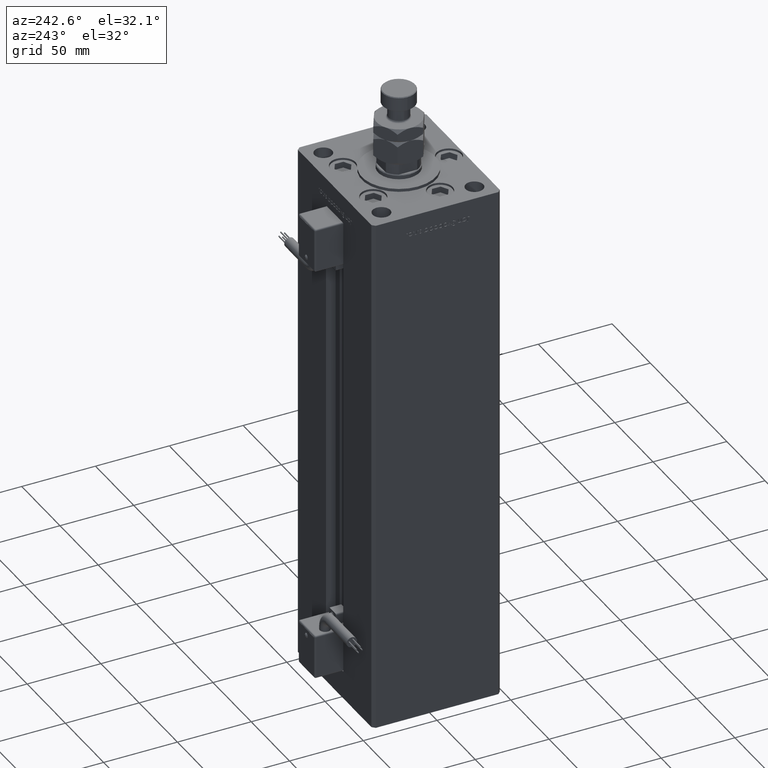
[diagram: clean part render]
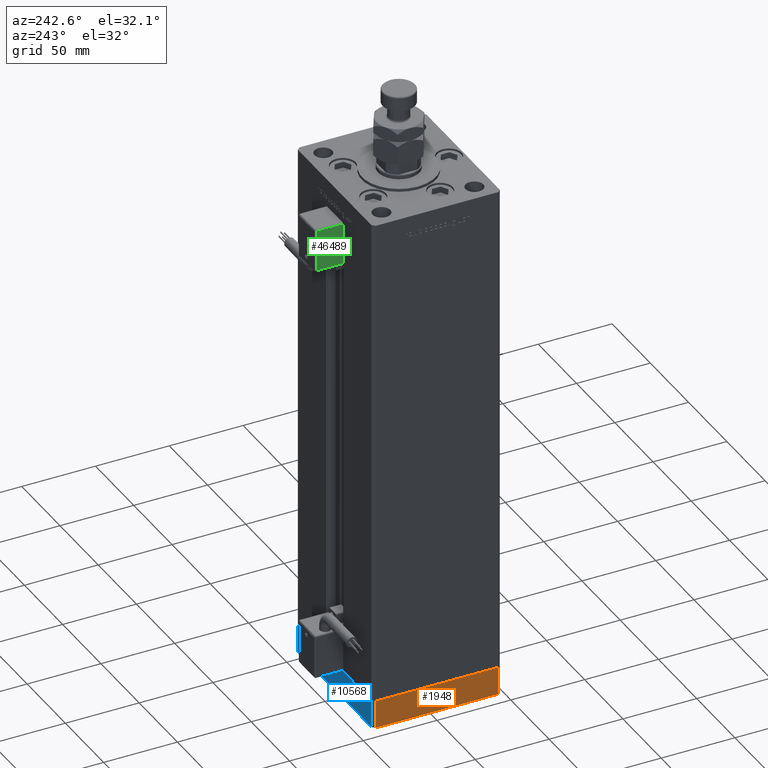
[diagram: same view with three faces highlighted in distinct colors, each labeled with its STEP entity id]
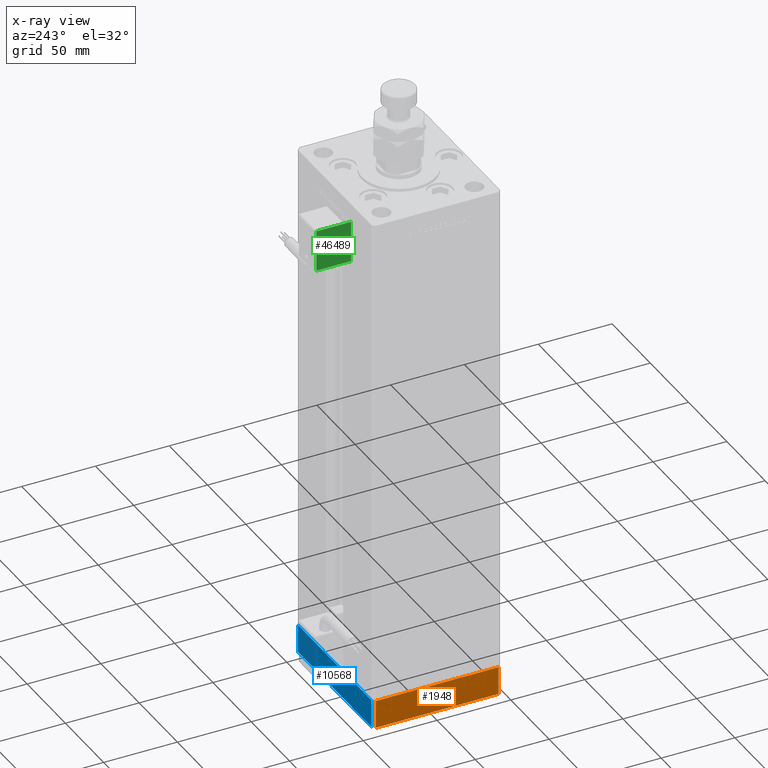
[diagram: x-ray of the same camera — body ghosted, the three highlighted faces saturated]
A machine part, auxiliary view with three faces highlighted in distinct colors.
The next image is the same camera in x-ray (body ghosted, the three faces saturated) — at least one of them is partly hidden behind the body in this view.
Their STEP definitions:

[orange] entity #1948 — the highlighted planar face has unit normal (-1, 0, 0).
#1948 = ADVANCED_FACE ( 'NONE', ( #36136 ), #49080, .T. ) ;
#4372 = AXIS2_PLACEMENT_3D ( 'NONE', #8811, #26359, #31813 ) ;
#6009 = VECTOR ( 'NONE', #54787, 1000.000000000000000 ) ;
#6758 = LINE ( 'NONE', #50203, #6009 ) ;
#8565 = DIRECTION ( 'NONE',  ( 0.000000000000000000, 0.000000000000000000, 1.000000000000000000 ) ) ;
#8811 = CARTESIAN_POINT ( 'NONE',  ( 50.00000000000000000, -41.49999999999999289, -19.00000000000000000 ) ) ;
#11733 = CARTESIAN_POINT ( 'NONE',  ( 50.00000000000000000, -41.49999999999999289, -19.00000000000000000 ) ) ;
#15229 = ORIENTED_EDGE ( 'NONE', *, *, #29860, .T. ) ;
#16362 = EDGE_CURVE ( 'NONE', #17066, #49976, #56796, .T. ) ;
#17066 = VERTEX_POINT ( 'NONE', #11733 ) ;
#18252 = DIRECTION ( 'NONE',  ( 0.000000000000000000, 0.000000000000000000, 1.000000000000000000 ) ) ;
#19006 = DIRECTION ( 'NONE',  ( -1.003213576468515193E-15, 1.000000000000000000, 0.000000000000000000 ) ) ;
#21522 = VECTOR ( 'NONE', #8565, 1000.000000000000000 ) ;
#25217 = VERTEX_POINT ( 'NONE', #41207 ) ;
#26359 = DIRECTION ( 'NONE',  ( 1.000000000000000000, 1.003213576468515193E-15, -0.000000000000000000 ) ) ;
#27579 = CARTESIAN_POINT ( 'NONE',  ( 49.99999999999992184, 41.49999999999998579, 0.000000000000000000 ) ) ;
#29088 = ORIENTED_EDGE ( 'NONE', *, *, #38306, .T. ) ;
#29271 = EDGE_CURVE ( 'NONE', #49976, #34304, #6758, .T. ) ;
#29860 = EDGE_CURVE ( 'NONE', #17066, #25217, #46238, .T. ) ;
#31813 = DIRECTION ( 'NONE',  ( -1.003213576468515193E-15, 1.000000000000000000, 0.000000000000000000 ) ) ;
#32772 = ORIENTED_EDGE ( 'NONE', *, *, #16362, .F. ) ;
#34304 = VERTEX_POINT ( 'NONE', #27579 ) ;
#36136 = FACE_OUTER_BOUND ( 'NONE', #48296, .T. ) ;
#38306 = EDGE_CURVE ( 'NONE', #25217, #34304, #56591, .T. ) ;
#38720 = CARTESIAN_POINT ( 'NONE',  ( 50.00000000000000000, -41.49999999999999289, 0.000000000000000000 ) ) ;
#40120 = CARTESIAN_POINT ( 'NONE',  ( 50.00000000000000000, -41.49999999999999289, -19.00000000000000000 ) ) ;
#41207 = CARTESIAN_POINT ( 'NONE',  ( 49.99999999999992184, 41.49999999999998579, -19.00000000000000000 ) ) ;
#46238 = LINE ( 'NONE', #53522, #54835 ) ;
#47968 = CARTESIAN_POINT ( 'NONE',  ( 49.99999999999992184, 41.49999999999998579, -19.00000000000000000 ) ) ;
#48296 = EDGE_LOOP ( 'NONE', ( #50059, #32772, #15229, #29088 ) ) ;
#49080 = PLANE ( 'NONE',  #4372 ) ;
#49976 = VERTEX_POINT ( 'NONE', #38720 ) ;
#50059 = ORIENTED_EDGE ( 'NONE', *, *, #29271, .F. ) ;
#50203 = CARTESIAN_POINT ( 'NONE',  ( 50.00000000000000000, -41.49999999999999289, 0.000000000000000000 ) ) ;
#53522 = CARTESIAN_POINT ( 'NONE',  ( 50.00000000000000000, -41.49999999999999289, -19.00000000000000000 ) ) ;
#54787 = DIRECTION ( 'NONE',  ( -1.003213576468515193E-15, 1.000000000000000000, 0.000000000000000000 ) ) ;
#54835 = VECTOR ( 'NONE', #19006, 1000.000000000000000 ) ;
#55258 = VECTOR ( 'NONE', #18252, 1000.000000000000000 ) ;
#56591 = LINE ( 'NONE', #47968, #21522 ) ;
#56796 = LINE ( 'NONE', #40120, #55258 ) ;

[blue] entity #10568 — the highlighted planar face has unit normal (0, 1, 0).
#706 = DIRECTION ( 'NONE',  ( 0.000000000000000000, 0.000000000000000000, 1.000000000000000000 ) ) ;
#1104 = LINE ( 'NONE', #18644, #35802 ) ;
#4431 = LINE ( 'NONE', #5005, #22012 ) ;
#5005 = CARTESIAN_POINT ( 'NONE',  ( 47.99999999999990763, 43.50000000000000000, -19.00000000000000000 ) ) ;
#6330 = VECTOR ( 'NONE', #45172, 1000.000000000000000 ) ;
#7969 = CARTESIAN_POINT ( 'NONE',  ( -48.00000000000000711, 43.49999999999996447, -19.00000000000000000 ) ) ;
#9792 = PLANE ( 'NONE',  #27509 ) ;
#10086 = LINE ( 'NONE', #40284, #6330 ) ;
#10568 = ADVANCED_FACE ( 'NONE', ( #27627 ), #9792, .T. ) ;
#11617 = EDGE_CURVE ( 'NONE', #38377, #31249, #1104, .T. ) ;
#17451 = VERTEX_POINT ( 'NONE', #25708 ) ;
#18644 = CARTESIAN_POINT ( 'NONE',  ( 47.99999999999990763, 43.50000000000000000, -19.00000000000000000 ) ) ;
#18700 = VECTOR ( 'NONE', #39434, 1000.000000000000000 ) ;
#19267 = CARTESIAN_POINT ( 'NONE',  ( 47.99999999999990763, 43.50000000000000000, -19.00000000000000000 ) ) ;
#19546 = DIRECTION ( 'NONE',  ( -3.614007241618350743E-16, 1.000000000000000000, 0.000000000000000000 ) ) ;
#20923 = EDGE_CURVE ( 'NONE', #31249, #39022, #43462, .T. ) ;
#22012 = VECTOR ( 'NONE', #706, 1000.000000000000000 ) ;
#22076 = CARTESIAN_POINT ( 'NONE',  ( 47.99999999999990763, 43.50000000000000000, -19.00000000000000000 ) ) ;
#24179 = EDGE_LOOP ( 'NONE', ( #30125, #53438, #28826, #56635 ) ) ;
#25708 = CARTESIAN_POINT ( 'NONE',  ( 47.99999999999990763, 43.50000000000000000, 0.000000000000000000 ) ) ;
#27509 = AXIS2_PLACEMENT_3D ( 'NONE', #19267, #19546, #54072 ) ;
#27627 = FACE_OUTER_BOUND ( 'NONE', #24179, .T. ) ;
#28826 = ORIENTED_EDGE ( 'NONE', *, *, #11617, .T. ) ;
#30125 = ORIENTED_EDGE ( 'NONE', *, *, #49948, .F. ) ;
#31249 = VERTEX_POINT ( 'NONE', #7969 ) ;
#31587 = DIRECTION ( 'NONE',  ( -1.000000000000000000, -3.614007241618350743E-16, 0.000000000000000000 ) ) ;
#35802 = VECTOR ( 'NONE', #31587, 1000.000000000000000 ) ;
#38377 = VERTEX_POINT ( 'NONE', #22076 ) ;
#39022 = VERTEX_POINT ( 'NONE', #46277 ) ;
#39434 = DIRECTION ( 'NONE',  ( 0.000000000000000000, 0.000000000000000000, 1.000000000000000000 ) ) ;
#40284 = CARTESIAN_POINT ( 'NONE',  ( 47.99999999999990763, 43.50000000000000000, 0.000000000000000000 ) ) ;
#43462 = LINE ( 'NONE', #43748, #18700 ) ;
#43748 = CARTESIAN_POINT ( 'NONE',  ( -48.00000000000000711, 43.49999999999996447, -19.00000000000000000 ) ) ;
#45172 = DIRECTION ( 'NONE',  ( -1.000000000000000000, -3.614007241618350743E-16, 0.000000000000000000 ) ) ;
#46277 = CARTESIAN_POINT ( 'NONE',  ( -48.00000000000000711, 43.49999999999996447, 0.000000000000000000 ) ) ;
#49948 = EDGE_CURVE ( 'NONE', #17451, #39022, #10086, .T. ) ;
#52413 = EDGE_CURVE ( 'NONE', #38377, #17451, #4431, .T. ) ;
#53438 = ORIENTED_EDGE ( 'NONE', *, *, #52413, .F. ) ;
#54072 = DIRECTION ( 'NONE',  ( -1.000000000000000000, -3.614007241618350743E-16, 0.000000000000000000 ) ) ;
#56635 = ORIENTED_EDGE ( 'NONE', *, *, #20923, .T. ) ;

[green] entity #46489 — the highlighted planar face has unit normal (1, 0, 0).
#280 = PLANE ( 'NONE',  #43868 ) ;
#2713 = VERTEX_POINT ( 'NONE', #26373 ) ;
#4290 = FACE_OUTER_BOUND ( 'NONE', #22984, .T. ) ;
#4510 = VECTOR ( 'NONE', #12913, 1000.000000000000000 ) ;
#4813 = LINE ( 'NONE', #22370, #36868 ) ;
#4853 = DIRECTION ( 'NONE',  ( 1.000000000000000000, 4.930380657629929601E-32, 1.094764425253299406E-47 ) ) ;
#7515 = EDGE_CURVE ( 'NONE', #52973, #14731, #50465, .T. ) ;
#12913 = DIRECTION ( 'NONE',  ( -2.220446049250000002E-16, -1.200000000000000024E-16, 1.000000000000000000 ) ) ;
#14431 = EDGE_CURVE ( 'NONE', #30076, #2713, #4813, .T. ) ;
#14731 = VERTEX_POINT ( 'NONE', #34790 ) ;
#15888 = ORIENTED_EDGE ( 'NONE', *, *, #40589, .T. ) ;
#17234 = CARTESIAN_POINT ( 'NONE',  ( -10.80000000000000071, 27.00000000000000000, -55.00000000000000000 ) ) ;
#17253 = CARTESIAN_POINT ( 'NONE',  ( -10.80000000000000071, 26.00000000000000000, -55.00000000000000000 ) ) ;
#17970 = DIRECTION ( 'NONE',  ( 3.108624468950000014E-32, -1.000000000000000000, -1.400000000000000069E-16 ) ) ;
#18593 = CARTESIAN_POINT ( 'NONE',  ( -10.80000000000000071, 50.50000000000000000, -54.00000000000000000 ) ) ;
#20198 = ORIENTED_EDGE ( 'NONE', *, *, #51020, .T. ) ;
#20714 = ORIENTED_EDGE ( 'NONE', *, *, #14431, .T. ) ;
#20912 = CARTESIAN_POINT ( 'NONE',  ( -10.80000000000000071, 50.50000000000000000, -55.00000000000000000 ) ) ;
#22370 = CARTESIAN_POINT ( 'NONE',  ( -10.80000000000000071, 26.00000000000000000, -54.00000000000000000 ) ) ;
#22984 = EDGE_LOOP ( 'NONE', ( #47260, #15888, #20714, #20198 ) ) ;
#25686 = VECTOR ( 'NONE', #54774, 1000.000000000000000 ) ;
#26373 = CARTESIAN_POINT ( 'NONE',  ( -10.80000000000000071, 27.00000000000000000, -54.00000000000000000 ) ) ;
#27028 = DIRECTION ( 'NONE',  ( 0.000000000000000000, -2.220446049250000002E-16, 1.000000000000000000 ) ) ;
#30076 = VERTEX_POINT ( 'NONE', #18593 ) ;
#34790 = CARTESIAN_POINT ( 'NONE',  ( -10.80000000000000071, 50.50000000000000000, -26.00000000000000000 ) ) ;
#36868 = VECTOR ( 'NONE', #17970, 1000.000000000000000 ) ;
#38468 = DIRECTION ( 'NONE',  ( 2.220446049250000002E-16, 1.200000000000000024E-16, -1.000000000000000000 ) ) ;
#39096 = LINE ( 'NONE', #17234, #4510 ) ;
#40460 = CARTESIAN_POINT ( 'NONE',  ( -10.80000000000000071, 27.00000000000000000, -26.00000000000000000 ) ) ;
#40589 = EDGE_CURVE ( 'NONE', #14731, #30076, #41652, .T. ) ;
#41560 = CARTESIAN_POINT ( 'NONE',  ( -10.80000000000000071, 26.00000000000000000, -26.00000000000000000 ) ) ;
#41652 = LINE ( 'NONE', #20912, #55592 ) ;
#43868 = AXIS2_PLACEMENT_3D ( 'NONE', #17253, #4853, #27028 ) ;
#46489 = ADVANCED_FACE ( 'NONE', ( #4290 ), #280, .F. ) ;
#47260 = ORIENTED_EDGE ( 'NONE', *, *, #7515, .T. ) ;
#50465 = LINE ( 'NONE', #41560, #25686 ) ;
#51020 = EDGE_CURVE ( 'NONE', #2713, #52973, #39096, .T. ) ;
#52973 = VERTEX_POINT ( 'NONE', #40460 ) ;
#54774 = DIRECTION ( 'NONE',  ( -3.108624468950000014E-32, 1.000000000000000000, 1.400000000000000069E-16 ) ) ;
#55592 = VECTOR ( 'NONE', #38468, 1000.000000000000000 ) ;